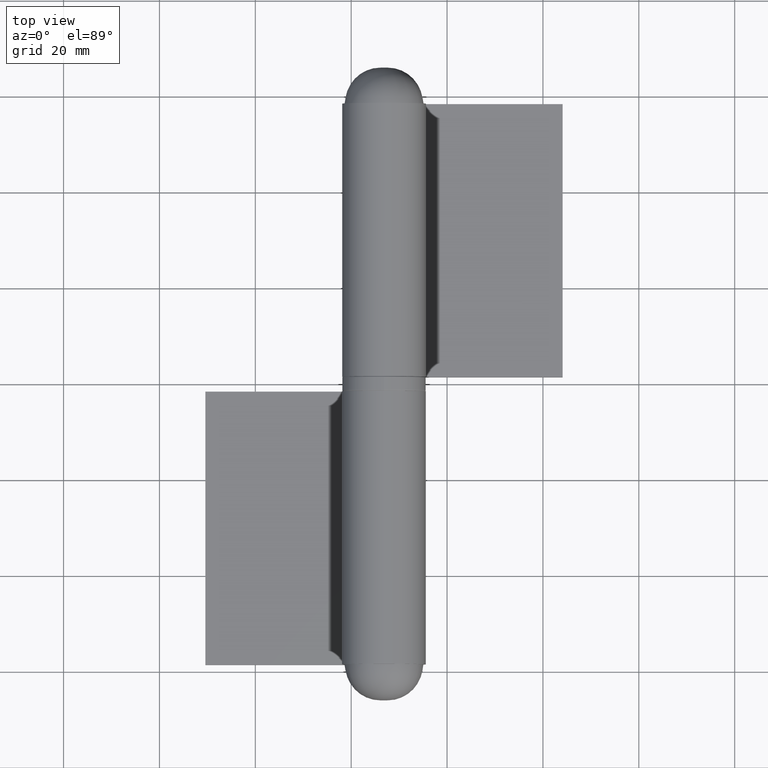
[diagram: clean part render]
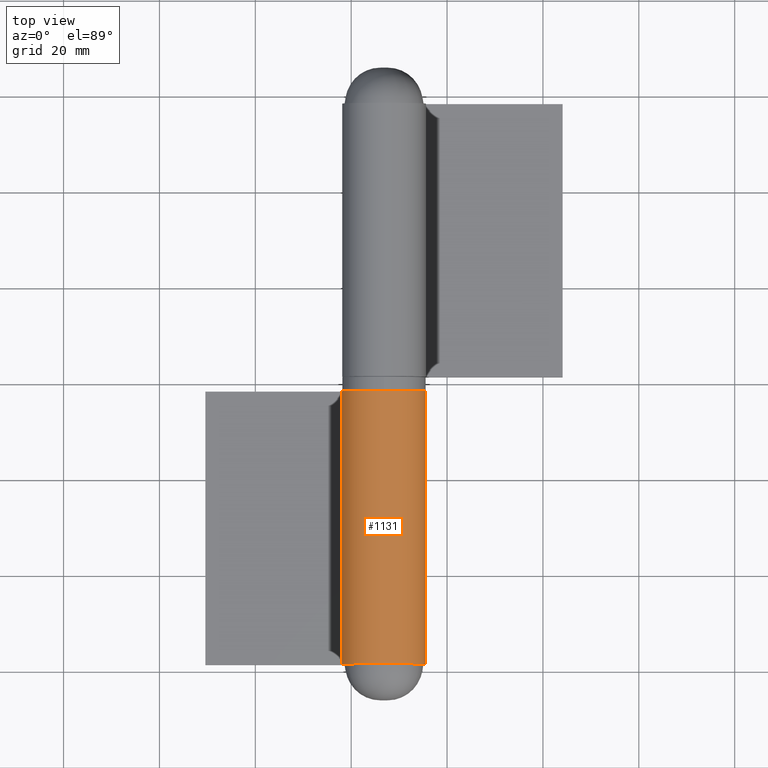
[diagram: same view with one face highlighted and labeled with its STEP entity id]
A machine part, top view. The second image highlights one B-rep face of the part: STEP entity #1131.
In plain terms, the highlighted cylindrical surface (partial cylindrical patch) has radius 8.75 mm, axis along (0, 1, -0).
Its self-contained STEP definition (entity closure, byte-faithful):
#215 = EDGE_LOOP ( 'NONE', ( #7483, #10544, #8614, #2952 ) ) ;
#304 = CARTESIAN_POINT ( 'NONE',  ( 0.000000000000000000, 28.50000000000000000, 0.000000000000000000 ) ) ;
#1038 = LINE ( 'NONE', #9018, #3490 ) ;
#1131 = ADVANCED_FACE ( 'NONE', ( #2978 ), #11210, .T. ) ;
#1210 = CARTESIAN_POINT ( 'NONE',  ( 6.681317235396025289, 28.50000000000000000, -5.650000000000000355 ) ) ;
#1687 = CARTESIAN_POINT ( 'NONE',  ( 0.000000000000000000, -28.50000000000000000, 0.000000000000000000 ) ) ;
#1732 = VERTEX_POINT ( 'NONE', #11921 ) ;
#1759 = DIRECTION ( 'NONE',  ( -0.000000000000000000, -1.000000000000000000, -0.000000000000000000 ) ) ;
#1806 = DIRECTION ( 'NONE',  ( 0.000000000000000000, 1.000000000000000000, -0.000000000000000000 ) ) ;
#1922 = AXIS2_PLACEMENT_3D ( 'NONE', #9182, #5584, #9346 ) ;
#2306 = CARTESIAN_POINT ( 'NONE',  ( 0.000000000000000000, 28.50000000000000000, -8.750000000000000000 ) ) ;
#2719 = CARTESIAN_POINT ( 'NONE',  ( 6.681317235396025289, 28.50000000000000000, -5.650000000000000355 ) ) ;
#2806 = AXIS2_PLACEMENT_3D ( 'NONE', #304, #8659, #9502 ) ;
#2952 = ORIENTED_EDGE ( 'NONE', *, *, #6472, .T. ) ;
#2978 = FACE_OUTER_BOUND ( 'NONE', #215, .T. ) ;
#3490 = VECTOR ( 'NONE', #1759, 1000.000000000000000 ) ;
#3715 = EDGE_CURVE ( 'NONE', #1732, #8494, #6677, .T. ) ;
#3992 = VERTEX_POINT ( 'NONE', #2306 ) ;
#4010 = LINE ( 'NONE', #2719, #8783 ) ;
#5584 = DIRECTION ( 'NONE',  ( -0.000000000000000000, -1.000000000000000000, -0.000000000000000000 ) ) ;
#6472 = EDGE_CURVE ( 'NONE', #3992, #1732, #1038, .T. ) ;
#6677 = CIRCLE ( 'NONE', #10903, 8.750000000000000000 ) ;
#6977 = CARTESIAN_POINT ( 'NONE',  ( 6.681317235396025289, -28.50000000000000000, -5.650000000000000355 ) ) ;
#7483 = ORIENTED_EDGE ( 'NONE', *, *, #3715, .T. ) ;
#8398 = CIRCLE ( 'NONE', #2806, 8.750000000000000000 ) ;
#8494 = VERTEX_POINT ( 'NONE', #6977 ) ;
#8614 = ORIENTED_EDGE ( 'NONE', *, *, #8847, .F. ) ;
#8659 = DIRECTION ( 'NONE',  ( 0.000000000000000000, 1.000000000000000000, -0.000000000000000000 ) ) ;
#8783 = VECTOR ( 'NONE', #9048, 1000.000000000000000 ) ;
#8847 = EDGE_CURVE ( 'NONE', #3992, #9747, #8398, .T. ) ;
#9018 = CARTESIAN_POINT ( 'NONE',  ( 0.000000000000000000, 28.50000000000000000, -8.750000000000000000 ) ) ;
#9048 = DIRECTION ( 'NONE',  ( -0.000000000000000000, -1.000000000000000000, -0.000000000000000000 ) ) ;
#9182 = CARTESIAN_POINT ( 'NONE',  ( 0.000000000000000000, 28.50000000000000000, 0.000000000000000000 ) ) ;
#9346 = DIRECTION ( 'NONE',  ( 0.000000000000000000, 0.000000000000000000, -1.000000000000000000 ) ) ;
#9502 = DIRECTION ( 'NONE',  ( 0.000000000000000000, 0.000000000000000000, 1.000000000000000000 ) ) ;
#9747 = VERTEX_POINT ( 'NONE', #1210 ) ;
#9975 = DIRECTION ( 'NONE',  ( 0.000000000000000000, 0.000000000000000000, 1.000000000000000000 ) ) ;
#10544 = ORIENTED_EDGE ( 'NONE', *, *, #11979, .F. ) ;
#10903 = AXIS2_PLACEMENT_3D ( 'NONE', #1687, #1806, #9975 ) ;
#11210 = CYLINDRICAL_SURFACE ( 'NONE', #1922, 8.750000000000000000 ) ;
#11921 = CARTESIAN_POINT ( 'NONE',  ( 0.000000000000000000, -28.50000000000000000, -8.750000000000000000 ) ) ;
#11979 = EDGE_CURVE ( 'NONE', #9747, #8494, #4010, .T. ) ;